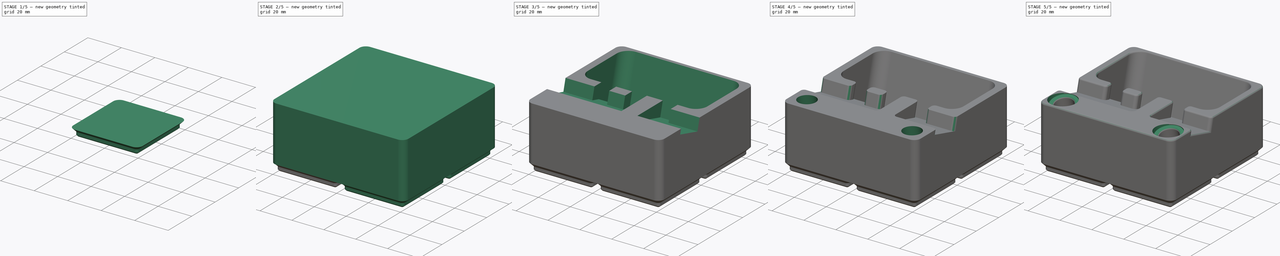
[diagram: build sequence overview — one tinted view per stage of 5, left to right]
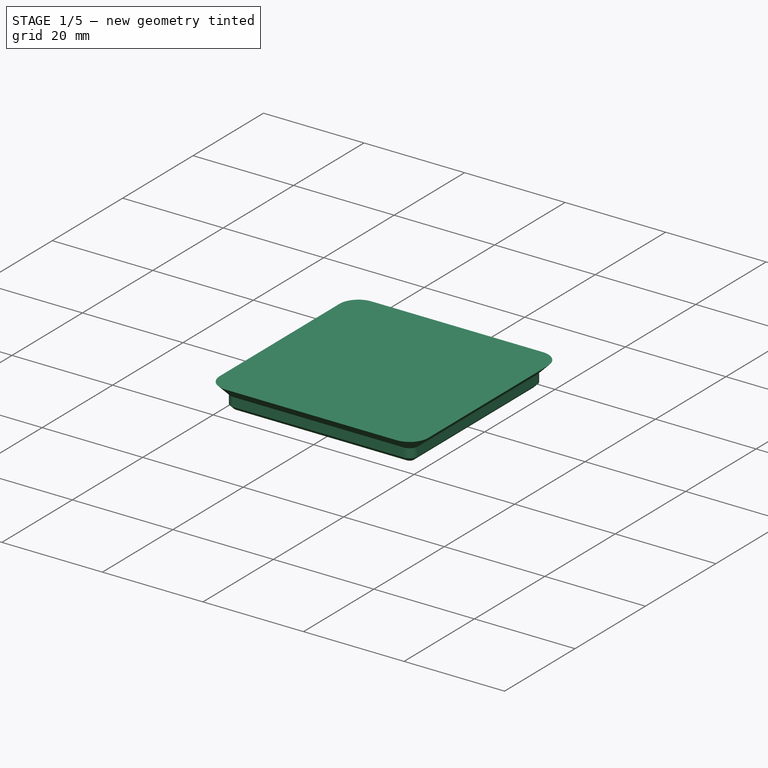
[diagram: stage 1 of 5 — iso view after this stage's code; geometry added in this stage tinted green]
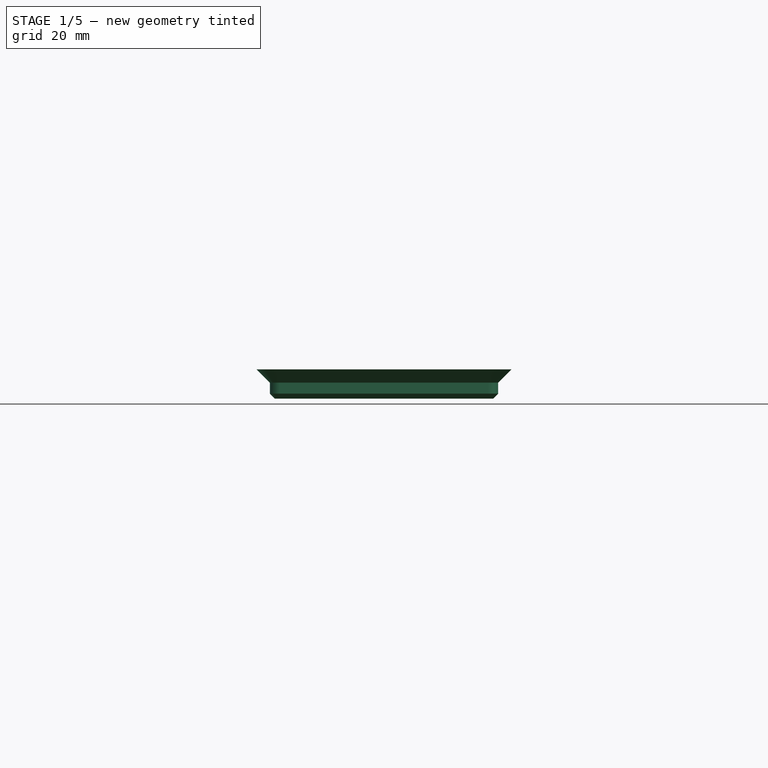
[diagram: stage 1 of 5 — front view after this stage's code; geometry added in this stage tinted green]
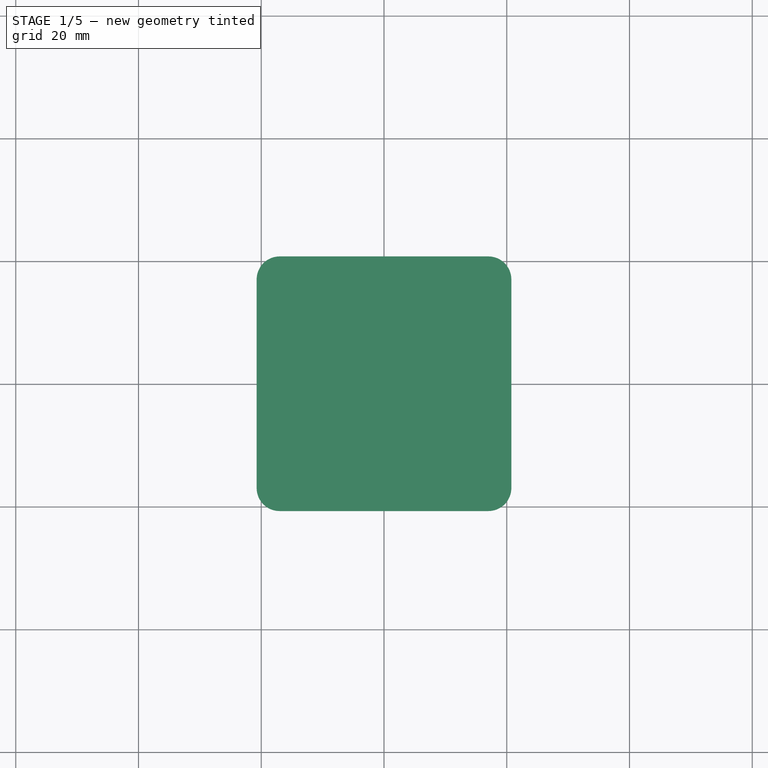
[diagram: stage 1 of 5 — top view after this stage's code; geometry added in this stage tinted green]
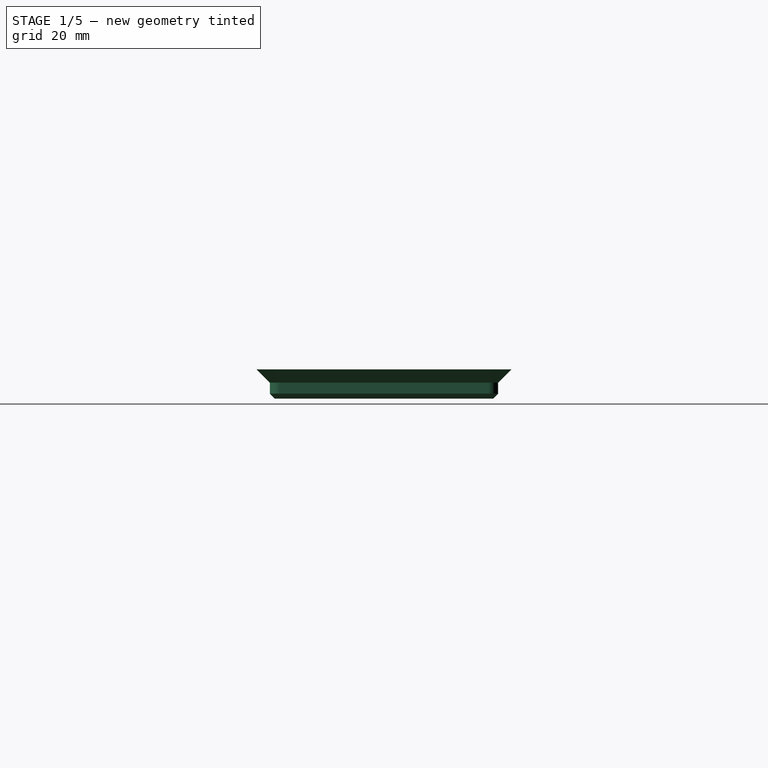
[diagram: stage 1 of 5 — right view after this stage's code; geometry added in this stage tinted green]
FCSTD DOCUMENT  (FreeCAD 1.1R20260223 (Git shallow))
Label: Gridfinity Fluke 115
License: Creative Commons Attribution 4.0
LicenseURL: https://creativecommons.org/licenses/by/4.0/
objects: Sketcher::SketchObject×7, PartDesign::Fillet×5, PartDesign::Pad×4, PartDesign::Pocket×4, App::Point×3, Part::Part2DObjectPython×3, Part::LocalCoordinateSystem×2, PartDesign::FeaturePython×1, PartDesign::Hole×1, PartDesign::Chamfer×1, PartDesign::Body×1
note: 65 computed .brp shape members not serialized (recipe doc carries the construction recipe); baked Part::Feature solids carry a one-line shape summary decoded from their .brp

FEATURE [App::Point] Origin002  label="Origin"
  Role = Origin
FEATURE [Sketcher::SketchObject] Sketch006
  ArcFitTolerance = 1e-06
  AttachmentSupport = -> [Origin]
  ExternalTypes = [0]
  FullyConstrained = true
  MakeInternals = false
  MapMode = 5
  expr: Constraints[10] = href(<<Tray>>.Width) * 42 - 16
  expr: Constraints[11] = href(<<Tray>>.Depth) * 42 - 16
  sketch-geometry (4):
    g0: Circle CenterX=-13 CenterY=-13 CenterZ=0 NormalX=0 NormalY=0 NormalZ=1 AngleXU=0 Radius=3.25
    g1: Circle CenterX=-13 CenterY=55 CenterZ=0 NormalX=0 NormalY=0 NormalZ=1 AngleXU=0 Radius=3.25
    g2: Circle CenterX=55 CenterY=55 CenterZ=0 NormalX=0 NormalY=0 NormalZ=1 AngleXU=0 Radius=3.25
    g3: Circle CenterX=55 CenterY=-13 CenterZ=0 NormalX=0 NormalY=0 NormalZ=1 AngleXU=0 Radius=3.25
  constraints (12):
    c: Equal(g2,g1)
    c: Equal(g1,g0)
    c: Equal(g0,g3)
    c: Diameter(g0) = 6.5
    c: Horizontal(g1,g2)
    c: Horizontal(g0,g3)
    c: Vertical(g1,g0)
    c: Vertical(g2,g3)
    c: DistanceY(g0,g-1) = 13
    c: DistanceX(g0,g-1) = 13
    c: DistanceX(g0,g3) = 68
    c: DistanceY(g0,g1) = 68
FEATURE [Sketcher::SketchObject] Sketch
  ArcFitTolerance = 1e-06
  AttachmentSupport = -> [XY_Plane]
  ExternalTypes = [0]
  FullyConstrained = true
  MakeInternals = false
  MapMode = 5
  sketch-geometry (10):
    g0: LineSegment StartX=-17.8 StartY=17 StartZ=0 EndX=-17.8 EndY=-17 EndZ=0
    g1: LineSegment StartX=-17 StartY=-17.8 StartZ=0 EndX=17 EndY=-17.8 EndZ=0
    g2: LineSegment StartX=17.8 StartY=-17 StartZ=0 EndX=17.8 EndY=17 EndZ=0
    g3: LineSegment StartX=17 StartY=17.8 StartZ=0 EndX=-17 EndY=17.8 EndZ=0
    g4: ArcOfCircle CenterX=-17 CenterY=17 CenterZ=0 NormalX=0 NormalY=0 NormalZ=1 AngleXU=0 Radius=0.8 StartAngle=1.5708 EndAngle=3.14159
    g5: ArcOfCircle CenterX=-17 CenterY=-17 CenterZ=0 NormalX=0 NormalY=0 NormalZ=1 AngleXU=0 Radius=0.8 StartAngle=3.14159 EndAngle=4.71239
    g6: ArcOfCircle CenterX=17 CenterY=-17 CenterZ=0 NormalX=0 NormalY=0 NormalZ=1 AngleXU=0 Radius=0.8 StartAngle=4.71239 EndAngle=6.28319
    g7: ArcOfCircle CenterX=17 CenterY=17 CenterZ=0 NormalX=0 NormalY=0 NormalZ=1 AngleXU=0 Radius=0.8 StartAngle=9.76e-14 EndAngle=1.5708
    g8: GeomPoint [constr] X=-17.8 Y=17.8 Z=0
    g9: GeomPoint [constr] X=17.8 Y=-17.8 Z=0
  constraints (23):
    c: Tangent(g0,g4) = -1.5708
    c: Tangent(g0,g5) = -1.5708
    c: Tangent(g1,g5) = -1.5708
    c: Tangent(g1,g6) = -1.5708
    c: Tangent(g2,g6) = -1.5708
    c: Tangent(g2,g7) = -1.5708
    c: Tangent(g3,g7) = -1.5708
    c: Tangent(g3,g4) = -1.5708
    c: Vertical(g0)
    c: Vertical(g2)
    c: Horizontal(g1)
    c: Horizontal(g3)
    c: Equal(g4,g5)
    c: Equal(g5,g6)
    c: Equal(g6,g7)
    c: PointOnObject(g8,g0)
    c: PointOnObject(g8,g3)
    c: PointOnObject(g9,g1)
    c: PointOnObject(g9,g2)
    c: Symmetric(g8,g9,g-1)
    c: Equal(g3,g2)
    c: DistanceY(g9,g8) = 35.6
    c: Diameter(g5) = 1.6
FEATURE [PartDesign::Pad] Pad  label="Lowest base pad"
  Direction = (0,0,1)
  Length = 0.8
  Length2 = 10
  Profile = -> Sketch
  ReferenceAxis = -> Sketch [N_Axis]
  SideType = 0
  Suppressed = false
  TaperAngle = 45
  Type = 0
  Type2 = 0
FEATURE [PartDesign::Pad] Pad001  label="Second base pad"
  BaseFeature = -> Pad
  Direction = (0,0,1)
  Length = 1.8
  Length2 = 10
  Profile = -> Pad [Edge3,Edge24,Edge22,Edge19,Edge16,Edge13,Edge10,Edge7]
  SideType = 0
  Suppressed = false
  Type = 0
  Type2 = 0
FEATURE [PartDesign::Pad] Pad002  label="Third base pad"
  BaseFeature = -> Pad001
  Direction = (0,0,1)
  Length = 2.15
  Length2 = 10
  Profile = -> Pad001 [Edge16,Edge31,Edge32,Edge33,Edge34,Edge35,Edge36,Edge29]
  SideType = 0
  Suppressed = false
  TaperAngle = 45
  Type = 0
  Type2 = 0
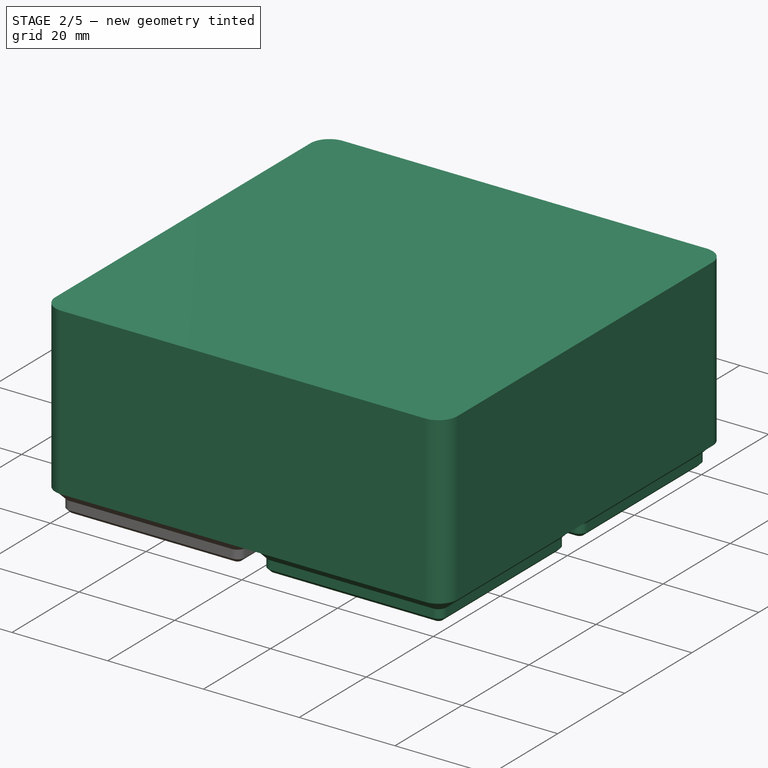
[diagram: stage 2 of 5 — iso view after this stage's code; geometry added in this stage tinted green]
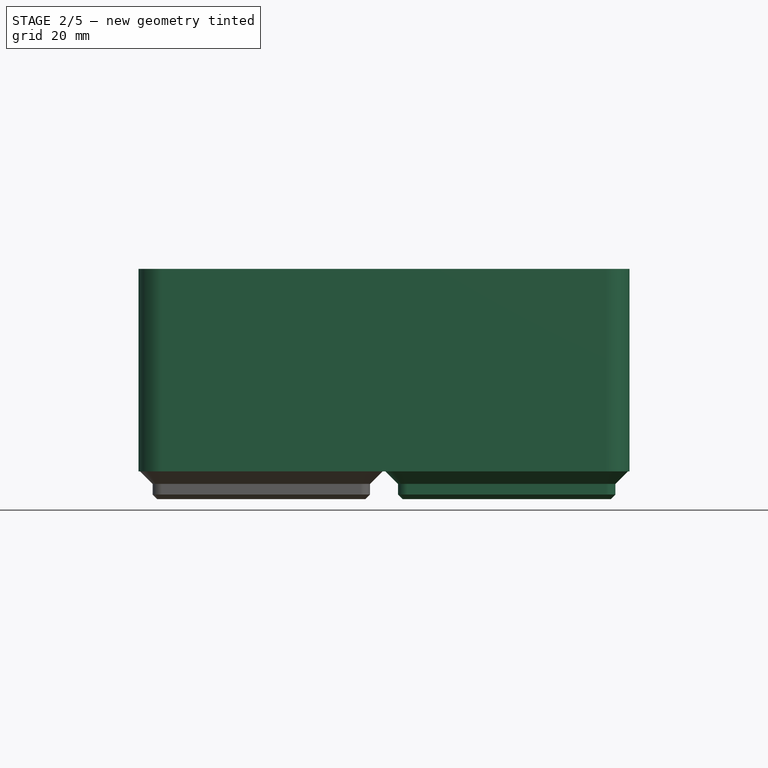
[diagram: stage 2 of 5 — front view after this stage's code; geometry added in this stage tinted green]
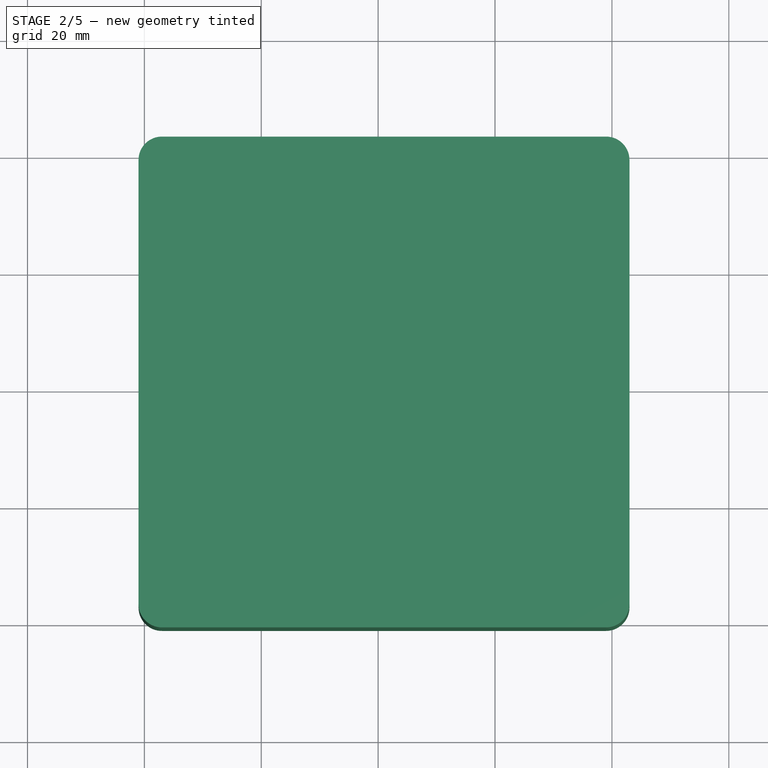
[diagram: stage 2 of 5 — top view after this stage's code; geometry added in this stage tinted green]
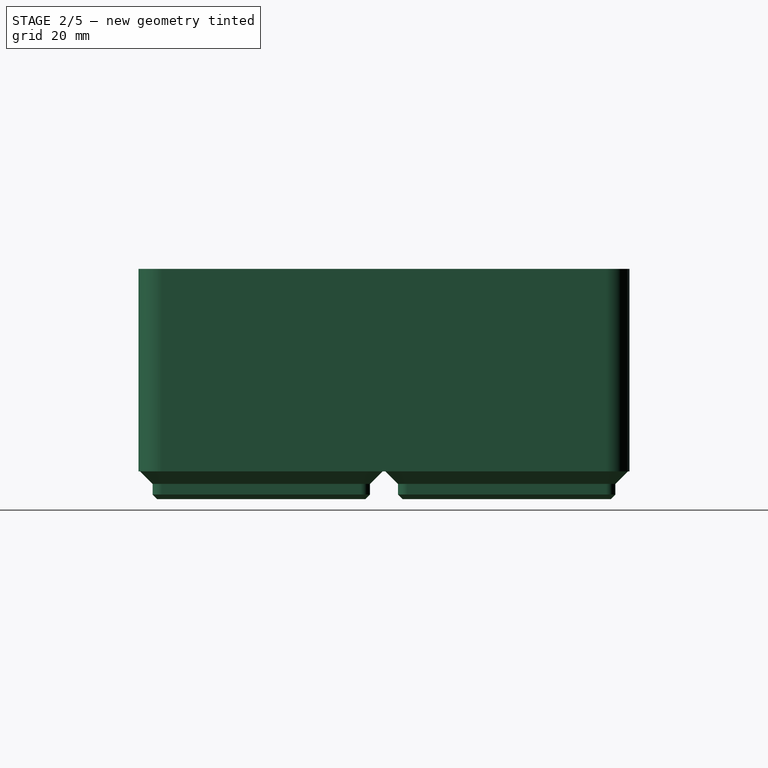
[diagram: stage 2 of 5 — right view after this stage's code; geometry added in this stage tinted green]
FEATURE [Sketcher::SketchObject] Sketch001
  ArcFitTolerance = 1e-06
  AttachmentSupport = -> [Pad002]
  ExternalTypes = [0]
  FullyConstrained = true
  MakeInternals = false
  MapMode = 5
  Placement = pos=(0,0,4.75) rot=(0,0,1;0rad)
  expr: Constraints[23] = href(<<Tray>>.Width) * 42
  expr: Constraints[24] = href(<<Tray>>.Depth) * 42
  sketch-geometry (8):
    g0: ArcOfCircle CenterX=-17 CenterY=-17 CenterZ=0 NormalX=0 NormalY=0 NormalZ=1 AngleXU=0 Radius=4 StartAngle=3.14159 EndAngle=4.71239
    g1: LineSegment StartX=-21 StartY=-17 StartZ=0 EndX=-21 EndY=59 EndZ=0
    g2: LineSegment StartX=-17 StartY=-21 StartZ=0 EndX=59 EndY=-21 EndZ=0
    g3: ArcOfCircle CenterX=-17 CenterY=59 CenterZ=0 NormalX=0 NormalY=0 NormalZ=1 AngleXU=0 Radius=4 StartAngle=1.5708 EndAngle=3.14159
    g4: ArcOfCircle CenterX=59 CenterY=-17 CenterZ=0 NormalX=0 NormalY=0 NormalZ=1 AngleXU=0 Radius=4 StartAngle=4.71239 EndAngle=6.28319
    g5: LineSegment StartX=-17 StartY=63 StartZ=0 EndX=59 EndY=63 EndZ=0
    g6: ArcOfCircle CenterX=59 CenterY=59 CenterZ=0 NormalX=0 NormalY=0 NormalZ=1 AngleXU=0 Radius=4 StartAngle=0 EndAngle=1.5708
    g7: LineSegment StartX=63 StartY=59 StartZ=0 EndX=63 EndY=-17 EndZ=0
  constraints (28):
    c: Vertical(g0,g0)
    c: Horizontal(g0,g0)
    c: Coincident(g1,g0)
    c: Vertical(g1)
    c: Coincident(g2,g0)
    c: Horizontal(g2)
    c: Coincident(g3,g1)
    c: Coincident(g4,g2)
    c: Vertical(g4,g2)
    c: Horizontal(g4,g4)
    c: Horizontal(g1,g3)
    c: Vertical(g3,g3)
    c: Equal(g0,g3)
    c: Equal(g0,g4)
    c: Coincident(g5,g3)
    c: Horizontal(g5)
    c: Vertical(g5,g2)
    c: Coincident(g6,g5)
    c: Vertical(g5,g6)
    c: Horizontal(g6,g6)
    c: Coincident(g7,g6)
    c: Coincident(g7,g4)
    c: Equal(g0,g6)
    c: DistanceX(g0,g4) = 84
    c: DistanceY(g2,g5) = 84
    c: DistanceX(g0,g-1) = 21
    c: DistanceY(g0,g-1) = 21
    c: Radius(g0) = 4
FEATURE [Part::Part2DObjectPython] LinearArray  label="LinearArrayX"  # Draft 2D object (typed FeaturePython)
  Alignment = 0
  AttacherType = Attacher::AttachEngine3D
  CellStart = A1
  Count = 2
  Dir = (1,0,0)
  DirIsDriven = true
  DistributionLaw = 0
  DrivenProperty = 1
  EndInclusive = true
  ExposePlacement = false
  GeneratorMode = 1
  Link = -> Pad002
  LinkSubelement = Edge6
  MarkerShape = 1
  MarkerSize = 5
  NumElements = 2
  OrientMode = 1
  Point = (-17,-17.8,0)
  PointIsDriven = true
  Reverse = false
  SpanEnd = 34
  SpanStart = 0
  Step = 42
  SubLink = -> Pad002 [Edge6]
  Type = lattice2LinearArray.LinearArray
  VSGVersion = 1
  Values = 0.0 | 42.0
  ValuesSource = 2
  isLattice = 1
  expr: Count = href(<<Tray>>.Width)
FEATURE [Part::Part2DObjectPython] LinearArray001  label="LinearArrayY"  # Draft 2D object (typed FeaturePython)
  Alignment = 0
  AttacherType = Attacher::AttachEngine3D
  CellStart = A1
  Count = 2
  Dir = (0,1,0)
  DirIsDriven = true
  DistributionLaw = 0
  DrivenProperty = 1
  EndInclusive = true
  ExposePlacement = false
  GeneratorMode = 1
  Link = -> Pad002
  LinkSubelement = Edge1
  MarkerShape = 1
  MarkerSize = 5
  NumElements = 2
  OrientMode = 1
  Point = (-17.8,-17,0)
  PointIsDriven = true
  Reverse = true
  SpanEnd = 34
  SpanStart = 0
  Step = 42
  SubLink = -> Pad002 [Edge1]
  Type = lattice2LinearArray.LinearArray
  VSGVersion = 1
  Values = 0.0 | 42.0
  ValuesSource = 2
  isLattice = 1
  expr: Count = href(<<Tray>>.Depth)
FEATURE [Part::Part2DObjectPython] Populate  label="Gridfinity array"  # Draft 2D object (typed FeaturePython)
  AttacherType = Attacher::AttachEngine3D
  Copying = 0
  ExposePlacement = false
  MarkerShape = 1
  MarkerSize = 5
  NumElements = 4
  Object = -> LinearArray
  OutputCompounding = 0
  PlacementsTo = -> LinearArray001
  Referencing = 1
  Type = lattice2PopulateCopies.LatticePopulateCopies
  isLattice = 1
FEATURE [PartDesign::FeaturePython] LatticePattern  label="Foundation grid pattern"  # WARN: FeaturePython — macro-defined, semantics opaque (R4)
  AllowBaseFeature = true
  BaseFeature = -> Pad002
  Debug = false
  FeaturesToCopy = -> [Pad002,Pad,Pad001]
  IgnoreUnsupported = false
  PlacementsTo = -> Populate
  Referencing = 1
  Selfintersections = false
  SignOverride = 0
  SkipFirstInBody = false
  Suppressed = false
FEATURE [PartDesign::Pad] Pad003  label="Tray top"
  BaseFeature = -> LatticePattern
  Direction = (0,0,1)
  Length = 34.65
  Length2 = 10
  Profile = -> Sketch001
  ReferenceAxis = -> Sketch001 [N_Axis]
  Refine = true
  SideType = 0
  Suppressed = false
  Type = 0
  Type2 = 0
  expr: Length = href(<<Tray>>.Height) * 7 - 0.35
FEATURE [PartDesign::Hole] Hole  label="Magnet holes"
  BaseFeature = -> Pad003
  BaseProfileType = 7
  CustomThreadClearance = 0
  Depth = 2
  DepthType = 0
  Diameter = 6.5
  DrillForDepth = false
  DrillPoint = 1
  DrillPointAngle = 90
  HoleCutCountersinkAngle = 90
  HoleCutCustomValues = false
  HoleCutDepth = 0
  HoleCutDiameter = 0
  HoleCutType = 0
  ModelThread = false
  Profile = -> Sketch006
  Refine = true
  Reversed = true
  Suppressed = false
  Tapered = false
  TaperedAngle = 90
  ThreadClass = 0
  ThreadDepth = 2
  ThreadDepthType = 0
  ThreadDiameter = 6.5
  ThreadDirection = 0
  ThreadFit = 0
  ThreadSize = 0
  ThreadType = 0
  Threaded = false
  UseCustomThreadClearance = false
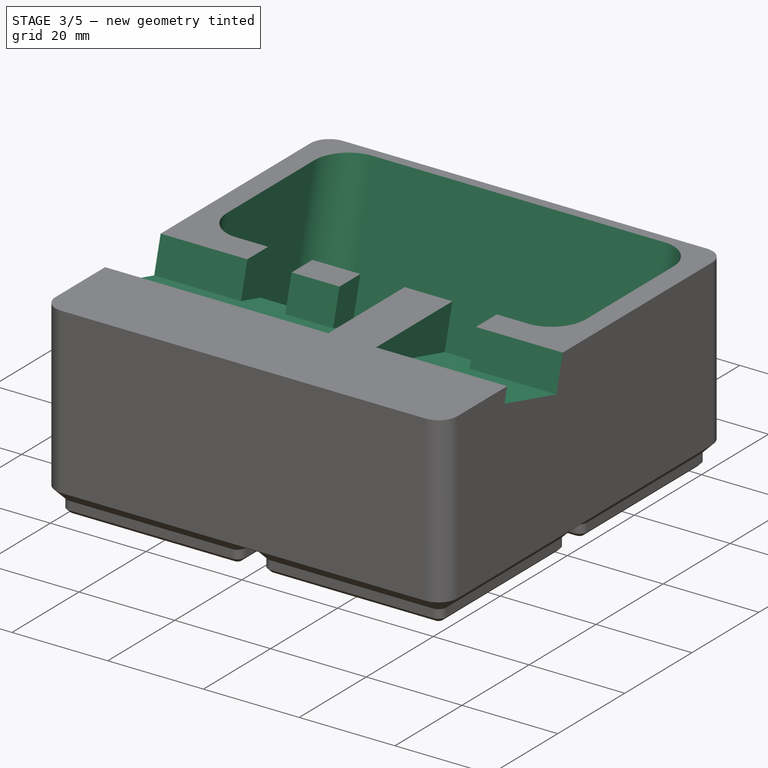
[diagram: stage 3 of 5 — iso view after this stage's code; geometry added in this stage tinted green]
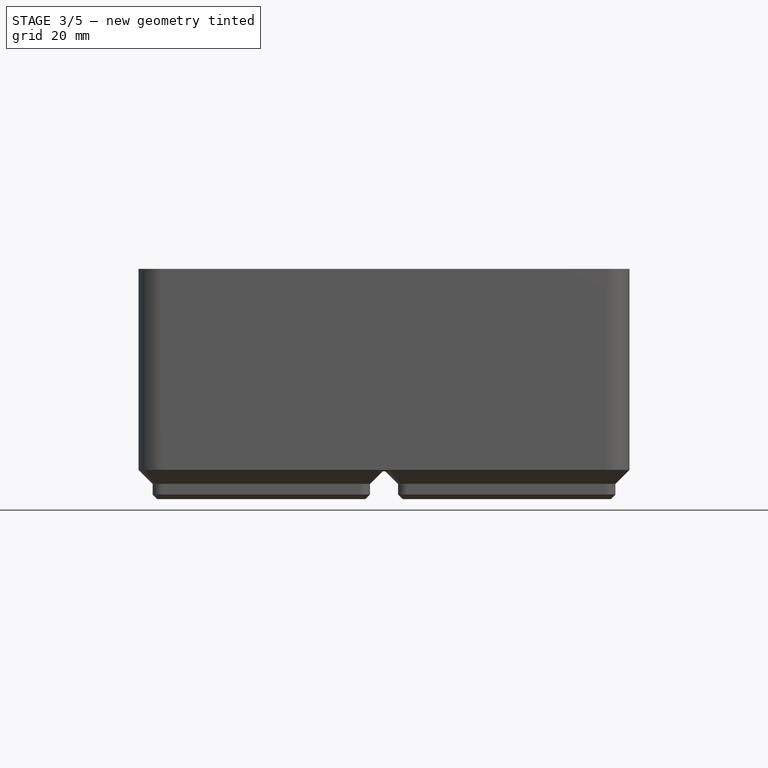
[diagram: stage 3 of 5 — front view after this stage's code; geometry added in this stage tinted green]
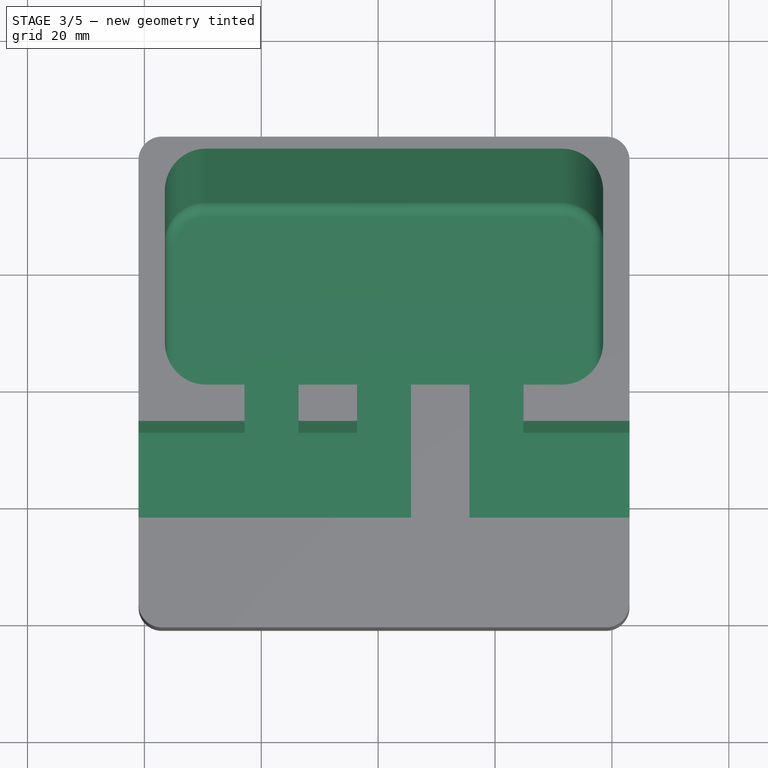
[diagram: stage 3 of 5 — top view after this stage's code; geometry added in this stage tinted green]
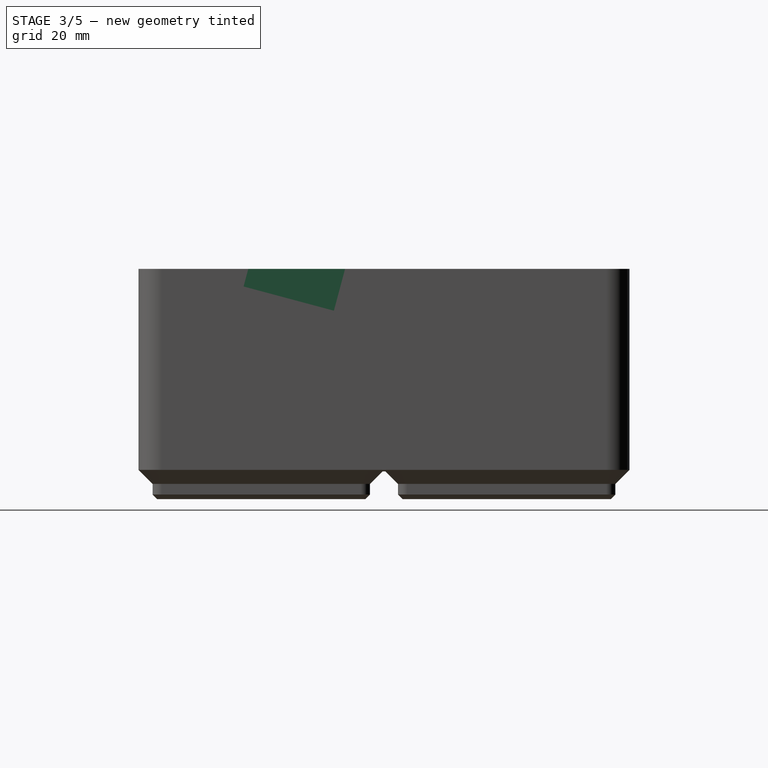
[diagram: stage 3 of 5 — right view after this stage's code; geometry added in this stage tinted green]
FEATURE [PartDesign::Chamfer] Chamfer001  label="Base chamfer"
  Angle = 45
  Base = -> Hole [Edge14]
  BaseFeature = -> Hole
  ChamferType = 0
  FlipDirection = false
  Refine = true
  Size = 0.249
  Size2 = 1
  SupportTransform = false
  Suppressed = false
  UseAllEdges = false
FEATURE [App::Point] Origin003  label="Origin002"
  Role = Origin
FEATURE [Part::LocalCoordinateSystem] LCS  label="LCS inclined from the back"
  AttacherType = Attacher::AttachEngine3D
  AttachmentOffset = pos=(0,0,0) rot=(0,0,1;0.261799rad)
  AttachmentSupport = -> [Chamfer001]
  MapMode = 7
  OriginFeatures = -> [X_Axis001,Y_Axis001,Z_Axis001,XY_Plane001,XZ_Plane001,YZ_Plane001,Origin003]
  Placement = pos=(-17,63,39.4) rot=(0.519988,-0.677661,-0.519988;1.95044rad)
FEATURE [Sketcher::SketchObject] Sketch007
  ArcFitTolerance = 1e-06
  AttachmentSupport = -> [LCS]
  ExternalGeometry = -> [Chamfer001]
  ExternalTypes = [0]
  FullyConstrained = true
  MakeInternals = false
  MapMode = 5
  Placement = pos=(-17,63,39.4) rot=(0.704063,-0.704063,0.092692;2.95674rad)
  sketch-geometry (12):
    g0: LineSegment StartX=2 StartY=-7.5 StartZ=0 EndX=2 EndY=-68.5 EndZ=0
    g1: LineSegment StartX=9 StartY=-75.5 StartZ=0 EndX=34 EndY=-75.5 EndZ=0
    g2: LineSegment StartX=41 StartY=-68.5 StartZ=0 EndX=41 EndY=-7.5 EndZ=0
    g3: LineSegment StartX=34 StartY=-0.5 StartZ=0 EndX=9 EndY=-0.5 EndZ=0
    g4: ArcOfCircle CenterX=9 CenterY=-7.5 CenterZ=0 NormalX=0 NormalY=0 NormalZ=1 AngleXU=0 Radius=7 StartAngle=1.5708 EndAngle=3.14159
    g5: ArcOfCircle CenterX=9 CenterY=-68.5 CenterZ=0 NormalX=0 NormalY=0 NormalZ=1 AngleXU=0 Radius=7 StartAngle=3.14159 EndAngle=4.71239
    g6: ArcOfCircle CenterX=34 CenterY=-68.5 CenterZ=0 NormalX=0 NormalY=0 NormalZ=1 AngleXU=0 Radius=7 StartAngle=4.71239 EndAngle=6.28319
    g7: ArcOfCircle CenterX=34 CenterY=-7.5 CenterZ=0 NormalX=0 NormalY=0 NormalZ=1 AngleXU=0 Radius=7 StartAngle=1e-16 EndAngle=1.5708
    g8: GeomPoint [constr] X=2 Y=-0.5 Z=0
    g9: GeomPoint [constr] X=41 Y=-75.5 Z=0
    g10: GeomPoint [constr] X=3.6e-15 Y=-38 Z=0
    g11: GeomPoint [constr] X=21.5 Y=-38 Z=0
  constraints (26):
    c: Tangent(g0,g4) = -1.5708
    c: Tangent(g0,g5) = -1.5708
    c: Tangent(g1,g5) = -1.5708
    c: Tangent(g1,g6) = -1.5708
    c: Tangent(g2,g6) = -1.5708
    c: Tangent(g2,g7) = -1.5708
    c: Tangent(g3,g7) = -1.5708
    c: Tangent(g3,g4) = -1.5708
    c: Vertical(g0)
    c: Vertical(g2)
    c: Horizontal(g1)
    c: Horizontal(g3)
    c: Equal(g4,g5)
    c: Equal(g5,g6)
    c: Equal(g6,g7)
    c: PointOnObject(g8,g0)
    c: PointOnObject(g8,g3)
    c: PointOnObject(g9,g1)
    c: PointOnObject(g9,g2)
    c: Radius(g5) = 7
    c: DistanceY(g1,g3) = 75
    c: DistanceX(g0,g2) = 39
    c: Symmetric(g-3,g-3,g10)
    c: Symmetric(g8,g9,g11)
    c: Horizontal(g11,g10)
    c: DistanceX(g-3,g0) = 2
FEATURE [PartDesign::Pocket] Pocket  label="Multimeter pocket"
  BaseFeature = -> Chamfer001
  Direction = (0,0.258819,0.965926)
  Length = 36
  Length2 = 5
  Profile = -> Sketch007
  ReferenceAxis = -> Sketch007 [N_Axis]
  Reversed = true
  SideType = 0
  Suppressed = false
  Type = 0
  Type2 = 0
FEATURE [PartDesign::Fillet] Fillet  label="Multimeter pocket bottom fillet"
  Base = -> Pocket [Edge274]
  BaseFeature = -> Pocket
  Radius = 2
  SupportTransform = false
  Suppressed = false
  UseAllEdges = false
FEATURE [Sketcher::SketchObject] Sketch008
  ArcFitTolerance = 1e-06
  AttachmentSupport = -> [LCS]
  ExternalGeometry = -> [Fillet]
  ExternalTypes = [0,0,0]
  FullyConstrained = true
  MakeInternals = false
  MapMode = 5
  Placement = pos=(-17,63,39.4) rot=(0.704063,-0.704063,0.092692;2.95674rad)
  sketch-geometry (18):
    g0: LineSegment StartX=41 StartY=-33.375 StartZ=0 EndX=47 EndY=-33.375 EndZ=0
    g1: LineSegment StartX=47 StartY=-33.375 StartZ=0 EndX=47 EndY=-23.375 EndZ=0
    g2: LineSegment StartX=47 StartY=4 StartZ=0 EndX=63 EndY=4 EndZ=0
    g3: LineSegment StartX=63 StartY=4 StartZ=0 EndX=63 EndY=-42.625 EndZ=0
    g4: LineSegment StartX=63 StartY=-42.625 StartZ=0 EndX=41 EndY=-42.625 EndZ=0
    g5: LineSegment StartX=41 StartY=-42.625 StartZ=0 EndX=41 EndY=-33.375 EndZ=0
    g6: LineSegment StartX=41 StartY=-52.625 StartZ=0 EndX=63 EndY=-52.625 EndZ=0
    g7: LineSegment StartX=63 StartY=-52.625 StartZ=0 EndX=63 EndY=-80 EndZ=0
    g8: LineSegment StartX=63 StartY=-80 StartZ=0 EndX=47 EndY=-80 EndZ=0
    g9: LineSegment StartX=47 StartY=-80 StartZ=0 EndX=47 EndY=-61.875 EndZ=0
    g10: LineSegment StartX=47 StartY=-61.875 StartZ=0 EndX=41 EndY=-61.875 EndZ=0
    g11: LineSegment StartX=41 StartY=-61.875 StartZ=0 EndX=41 EndY=-52.625 EndZ=0
    g12: GeomPoint [constr] X=41 Y=-38 Z=0
    g13: LineSegment StartX=47 StartY=-14.125 StartZ=0 EndX=47 EndY=4 EndZ=0
    g14: LineSegment StartX=41 StartY=-14.125 StartZ=0 EndX=47 EndY=-14.125 EndZ=0
    g15: LineSegment StartX=41 StartY=-23.375 StartZ=0 EndX=41 EndY=-14.125 EndZ=0
    g16: LineSegment StartX=47 StartY=-23.375 StartZ=0 EndX=41 EndY=-23.375 EndZ=0
    g17: LineSegment [constr] StartX=41 StartY=-42.625 StartZ=0 EndX=41 EndY=-52.625 EndZ=0
  constraints (50):
    c: PointOnObject(g0,g-3)
    c: Horizontal(g0)
    c: Coincident(g0,g1)
    c: Coincident(g13,g2)
    c: Horizontal(g2)
    c: Coincident(g2,g3)
    c: Vertical(g3)
    c: Coincident(g3,g4)
    c: Horizontal(g4)
    c: Coincident(g4,g5)
    c: Coincident(g5,g0)
    c: PointOnObject(g6,g-3)
    c: Horizontal(g6)
    c: Coincident(g6,g7)
    c: Vertical(g7)
    c: Coincident(g7,g8)
    c: Horizontal(g8)
    c: Coincident(g8,g9)
    c: Vertical(g9)
    c: Coincident(g9,g10)
    c: PointOnObject(g10,g-3)
    c: Horizontal(g10)
    c: Coincident(g10,g11)
    c: Coincident(g11,g6)
    c: Equal(g5,g11)
    c: Vertical(g3,g6)
    c: PointOnObject(g2,g-4)
    c: PointOnObject(g7,g-5)
    c: DistanceY(g6,g4) = 10
    c: DistanceX(g10,g10) = 6
    c: DistanceX(g2,g2) = 16
    c: Vertical(g0,g9)
    c: DistanceY(g5,g5) = 9.25
    c: Symmetric(g-3,g-3,g12)
    c: Symmetric(g4,g0,g12)
    c: Vertical(g13)
    c: Coincident(g14,g13)
    c: Coincident(g15,g14)
    c: Coincident(g16,g15)
    c: Vertical(g1)
    c: Coincident(g1,g16)
    c: Vertical(g15)
    c: Vertical(g13,g1)
    c: Horizontal(g14)
    c: Horizontal(g16)
    c: PointOnObject(g14,g-3)
    c: Equal(g5,g15)
    c: Coincident(g17,g4)
    c: Coincident(g17,g6)
    c: Equal(g17,g1)
FEATURE [PartDesign::Pocket] Pocket001  label="Probe plug pocket"
  BaseFeature = -> Fillet
  Direction = (0,0.258819,0.965926)
  Length = 20
  Length2 = 5
  Profile = -> Sketch008
  ReferenceAxis = -> Sketch008 [N_Axis]
  Reversed = true
  SideType = 0
  Suppressed = false
  Type = 0
  Type2 = 0
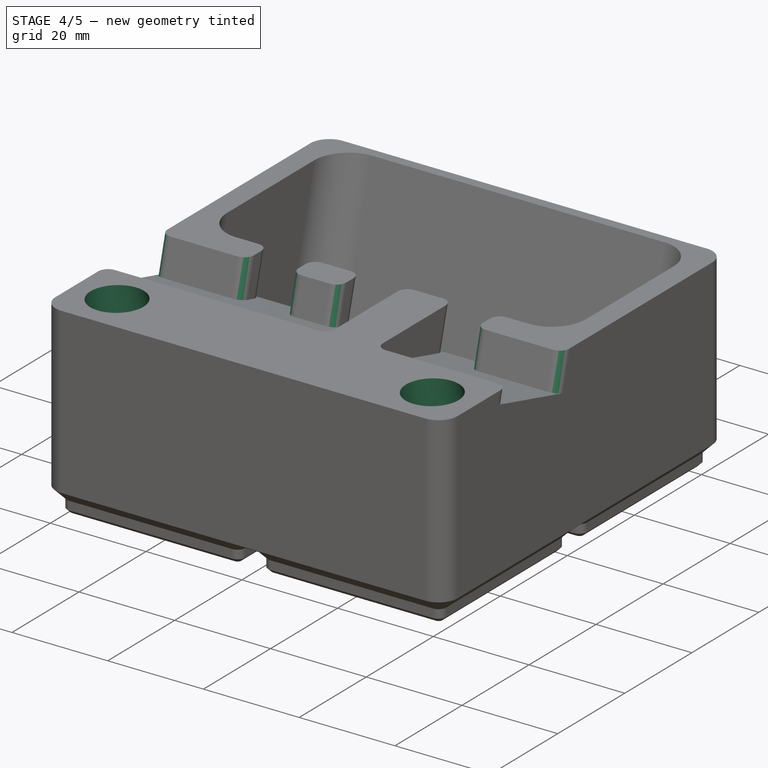
[diagram: stage 4 of 5 — iso view after this stage's code; geometry added in this stage tinted green]
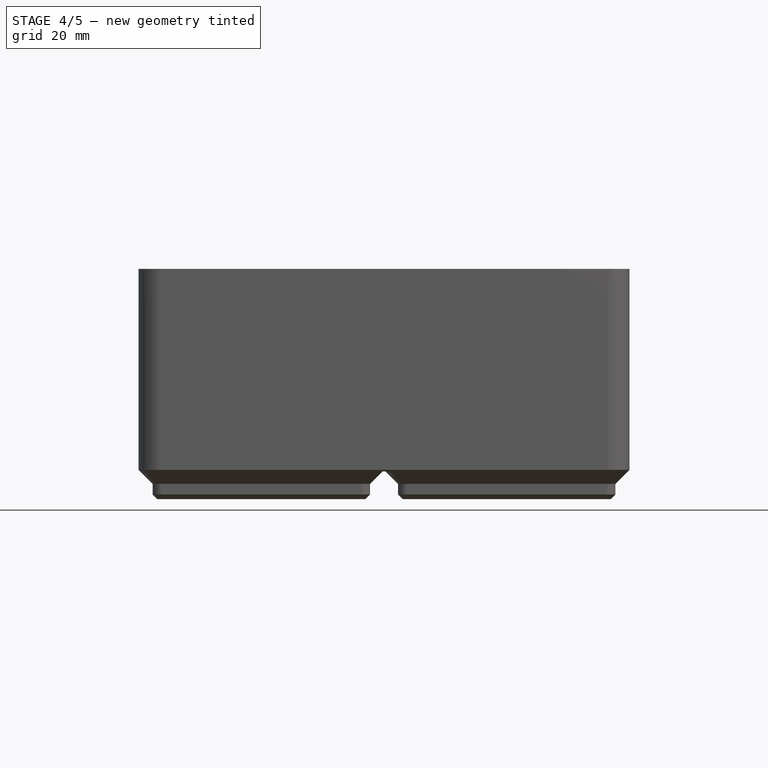
[diagram: stage 4 of 5 — front view after this stage's code; geometry added in this stage tinted green]
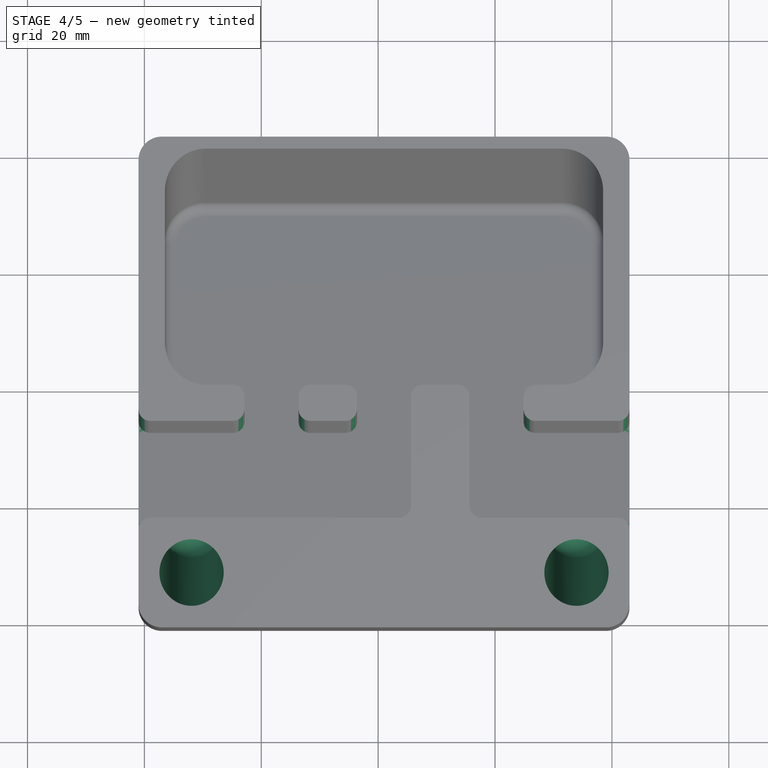
[diagram: stage 4 of 5 — top view after this stage's code; geometry added in this stage tinted green]
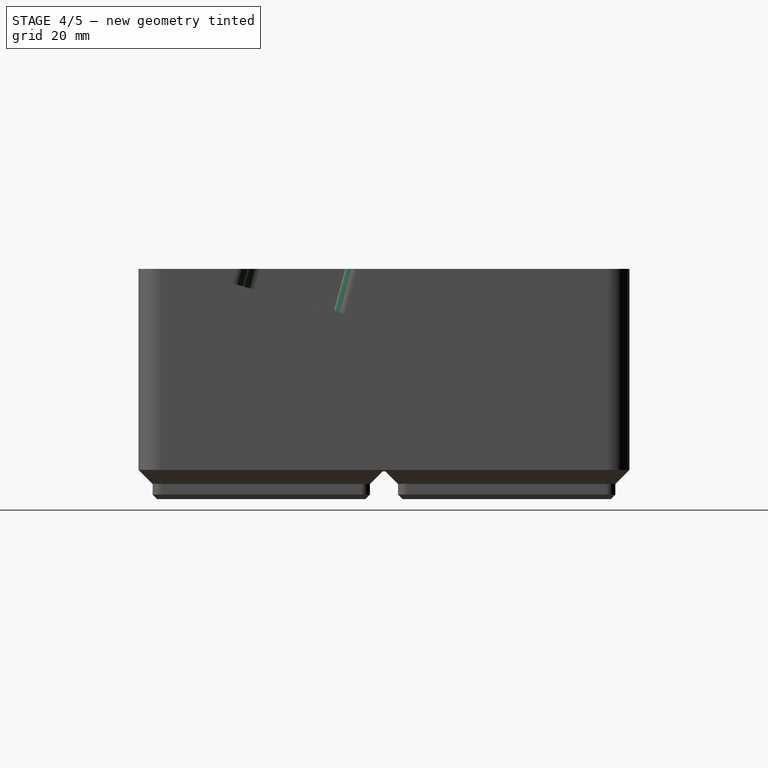
[diagram: stage 4 of 5 — right view after this stage's code; geometry added in this stage tinted green]
FEATURE [App::Point] Origin004  label="Origin003"
  Role = Origin
FEATURE [Part::LocalCoordinateSystem] LCS001  label="LCS inclined from the front"
  AttacherType = Attacher::AttachEngine3D
  AttachmentOffset = pos=(0,0,0) rot=(0,0,-1;0.261799rad)
  AttachmentSupport = -> [Pocket001]
  MapMode = 7
  OriginFeatures = -> [X_Axis002,Y_Axis002,Z_Axis002,XY_Plane002,XZ_Plane002,YZ_Plane002,Origin004]
  Placement = pos=(-17,-21,39.4) rot=(0.621515,-0.476905,-0.621515;2.25159rad)
FEATURE [Sketcher::SketchObject] Sketch009
  ArcFitTolerance = 1e-06
  AttachmentSupport = -> [LCS001]
  ExternalGeometry = -> [Pocket001]
  ExternalTypes = [0,0]
  FullyConstrained = true
  MakeInternals = false
  MapMode = 5
  Placement = pos=(-17,-21,39.4) rot=(0.704063,-0.704063,-0.092692;3.32645rad)
  sketch-geometry (9):
    g0: Circle CenterX=-9.06888 CenterY=-5.06888 CenterZ=0 NormalX=0 NormalY=0 NormalZ=1 AngleXU=0 Radius=5.5
    g1: Circle CenterX=-9.06888 CenterY=-70.9311 CenterZ=0 NormalX=0 NormalY=0 NormalZ=1 AngleXU=0 Radius=5.5
    g2: GeomPoint [constr] X=-7.1e-15 Y=-38 Z=0
    g3: GeomPoint [constr] X=-9.06888 Y=-38 Z=0
    g4: GeomPoint [constr] X=-18.1378 Y=-38 Z=0
    g5: GeomPoint [constr] X=-14.5689 Y=-5.06888 Z=0
    g6: GeomPoint [constr] X=-18.1378 Y=-5.06888 Z=0
    g7: LineSegment [constr] StartX=-9.06888 StartY=-5.06888 StartZ=0 EndX=-18.1378 EndY=-5.06888 EndZ=0
    g8: LineSegment [constr] StartX=-18.1378 StartY=4 StartZ=0 EndX=-18.1378 EndY=-5.06888 EndZ=0
  constraints (17):
    c: Diameter(g0) = 11
    c: Equal(g0,g1)
    c: Symmetric(g-3,g-3,g2)
    c: Symmetric(g1,g0,g3)
    c: Horizontal(g2,g3)
    c: Vertical(g0,g1)
    c: PointOnObject(g4,g-4)
    c: Symmetric(g2,g4,g3)
    c: PointOnObject(g5,g0)
    c: Horizontal(g0,g5)
    c: PointOnObject(g6,g-4)
    c: Horizontal(g0,g6)
    c: Coincident(g7,g0)
    c: Coincident(g7,g6)
    c: Coincident(g8,g-4)
    c: Coincident(g8,g6)
    c: Equal(g7,g8)
FEATURE [PartDesign::Pocket] Pocket002  label="Probe pockets"
  BaseFeature = -> Pocket001
  Direction = (0,-0.258819,0.965926)
  Length = 40
  Length2 = 5
  Profile = -> Sketch009
  ReferenceAxis = -> Sketch009 [N_Axis]
  Reversed = true
  SideType = 0
  Suppressed = false
  Type = 0
  Type2 = 0
FEATURE [PartDesign::Fillet] Fillet001  label="Probe pocket bottom fillet"
  Base = -> Pocket002 [Edge165,Edge163]
  BaseFeature = -> Pocket002
  Radius = 5
  SupportTransform = false
  Suppressed = false
  UseAllEdges = false
FEATURE [PartDesign::Fillet] Fillet002  label="Round off top outline"
  Base = -> Fillet001 [Edge49,Edge51,Edge96,Edge39,Edge41,Edge99,Edge102,Edge22,Edge26,Edge30,Edge54,Edge37,Edge79,Edge45,Edge20,Edge43]
  BaseFeature = -> Fillet001
  Radius = 2
  SupportTransform = false
  Suppressed = false
  UseAllEdges = false
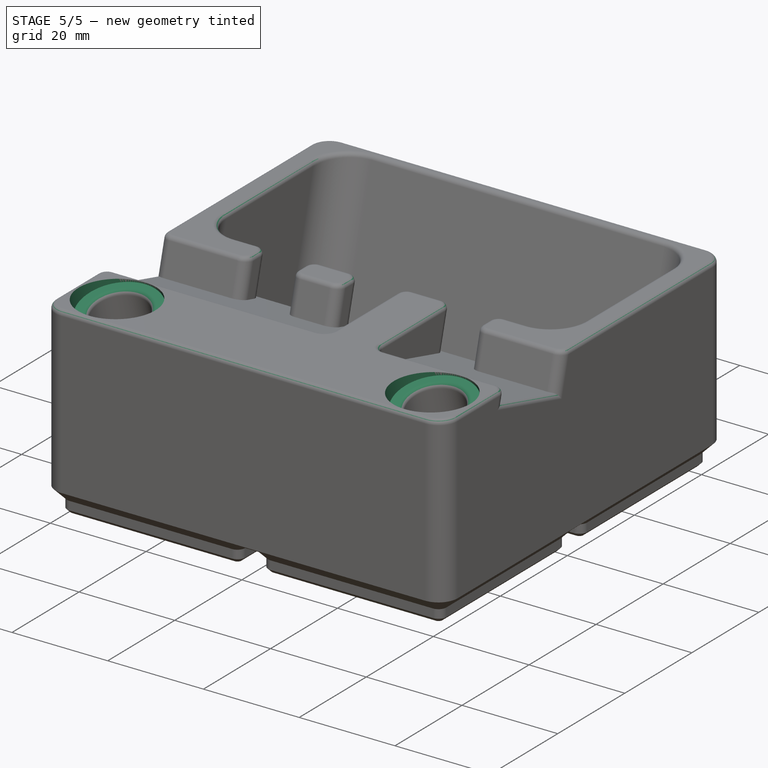
[diagram: stage 5 of 5 — iso view after this stage's code; geometry added in this stage tinted green]
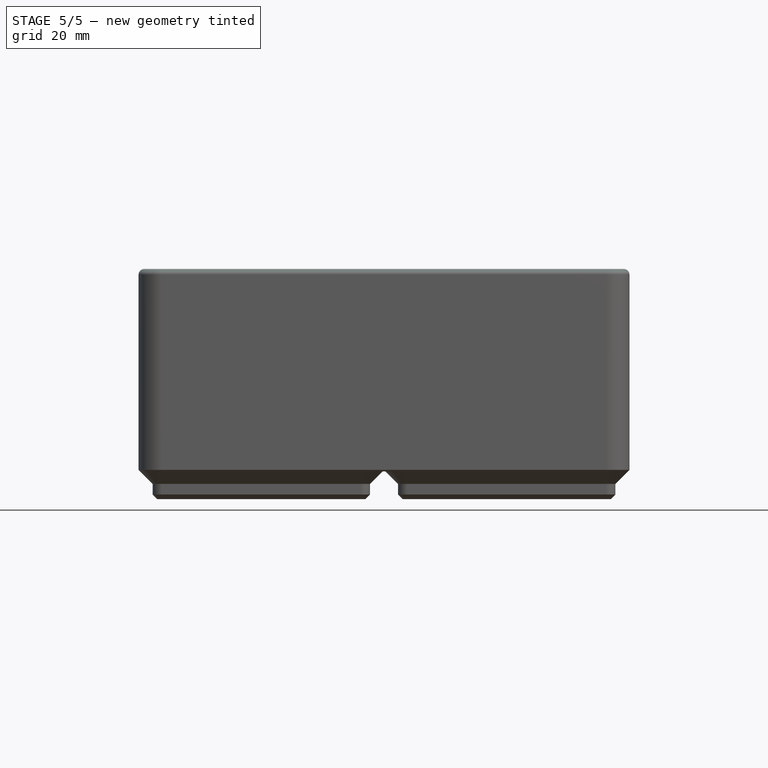
[diagram: stage 5 of 5 — front view after this stage's code; geometry added in this stage tinted green]
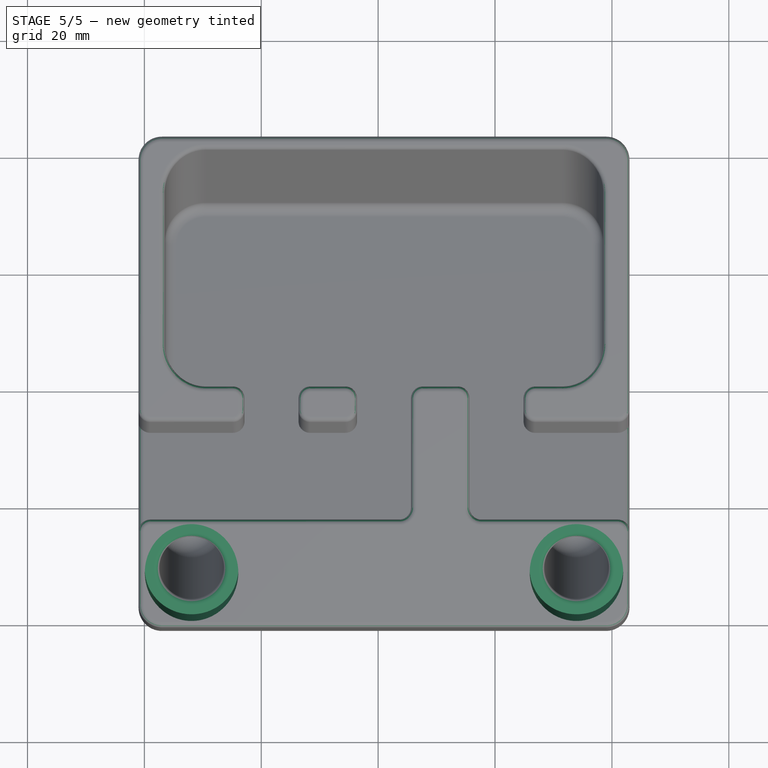
[diagram: stage 5 of 5 — top view after this stage's code; geometry added in this stage tinted green]
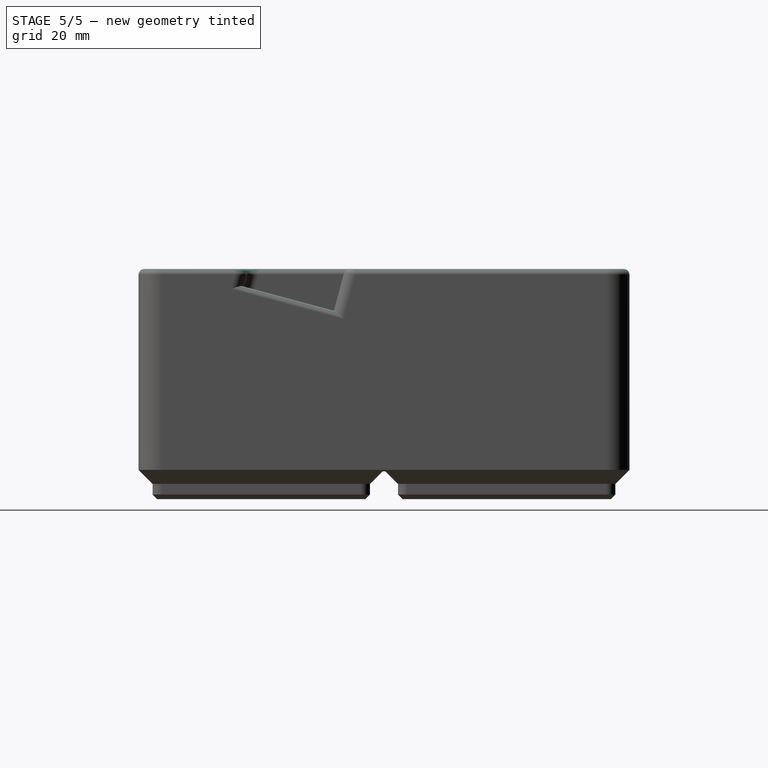
[diagram: stage 5 of 5 — right view after this stage's code; geometry added in this stage tinted green]
FEATURE [PartDesign::Fillet] Fillet003  label="Top fillet"
  Base = -> Fillet002 [Edge48,Edge16,Edge152,Edge45,Edge24]
  BaseFeature = -> Fillet002
  Radius = 1
  SupportTransform = false
  Suppressed = false
  UseAllEdges = false
FEATURE [Sketcher::SketchObject] Sketch010
  ArcFitTolerance = 1e-06
  AttachmentSupport = -> [LCS001]
  ExternalGeometry = -> [Pocket002]
  ExternalTypes = [0,0]
  FullyConstrained = true
  MakeInternals = false
  MapMode = 5
  Placement = pos=(-17,-21,39.4) rot=(0.704063,-0.704063,-0.092692;3.32645rad)
  sketch-geometry (2):
    g0: Circle CenterX=-9.06888 CenterY=-5.06888 CenterZ=0 NormalX=0 NormalY=0 NormalZ=1 AngleXU=0 Radius=8
    g1: Circle CenterX=-9.06888 CenterY=-70.9311 CenterZ=0 NormalX=0 NormalY=0 NormalZ=1 AngleXU=0 Radius=8
  constraints (4):
    c: Diameter(g0) = 16
    c: Coincident(g0,g-3)
    c: Coincident(g1,g-4)
    c: Equal(g0,g1)
FEATURE [PartDesign::Pocket] Pocket003  label="Probe rim pockets"
  BaseFeature = -> Fillet003
  Direction = (0,-0.258819,0.965926)
  Length = 5
  Length2 = 5
  Profile = -> Sketch010
  ReferenceAxis = -> Sketch010 [N_Axis]
  Reversed = true
  SideType = 0
  Suppressed = false
  Type = 0
  Type2 = 0
FEATURE [PartDesign::Fillet] Fillet004  label="Probe rim fillet"
  Base = -> Pocket003 [Edge103,Edge68]
  BaseFeature = -> Pocket003
  Radius = 1
  SupportTransform = false
  Suppressed = false
  UseAllEdges = false
FEATURE [PartDesign::Body] Body  label="Tray"
  AllowCompound = false
  Depth = 2
  Group = -> [Sketch,Pad,Pad001,Pad002,LinearArray,LinearArray001,Populate,LatticePattern,Sketch001,Pad003,Sketch006,Hole,Chamfer001,LCS,Sketch007,Pocket,Fillet,Sketch008,Pocket001,LCS001,Sketch009,Pocket002,Fillet001,Fillet002,Sketch010,Fillet003,Pocket003,Fillet004]
  Height = 5
  InnerDepth = 28
  Origin = -> Origin
  Placement = pos=(0,0,6.534) rot=(0,0,1;0rad)
  Tip = -> Fillet004
  Width = 2
  expr: InnerDepth = (Height - 1) * 7
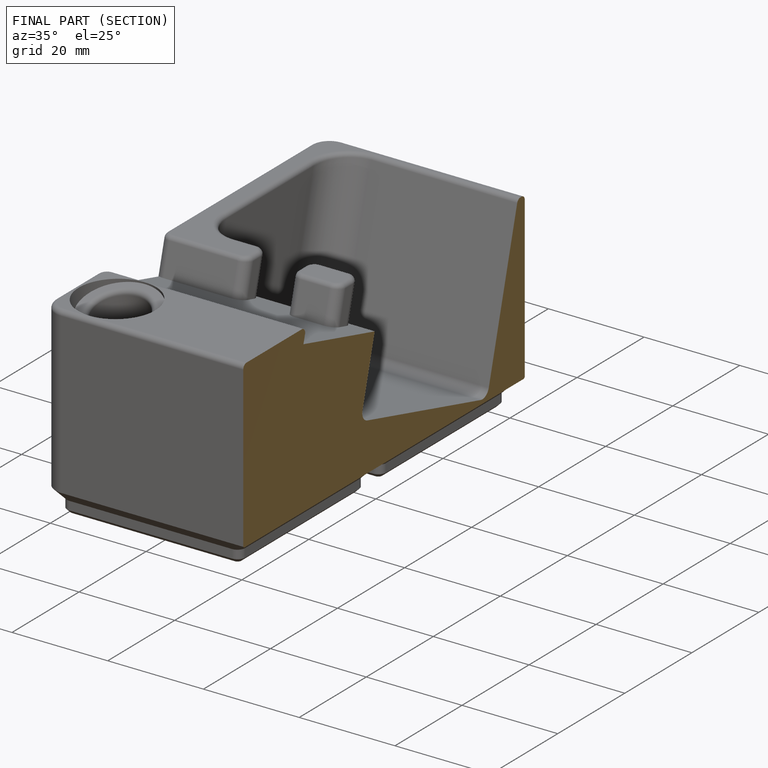
[diagram: finished part — half-section view (interior)]
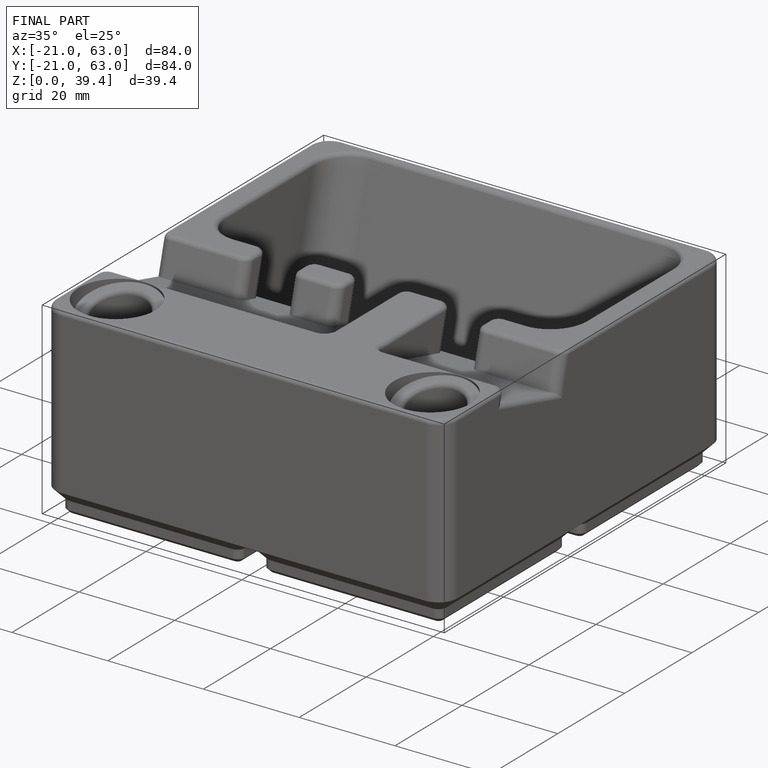
[diagram: finished part — iso view with bounding-box wireframe]
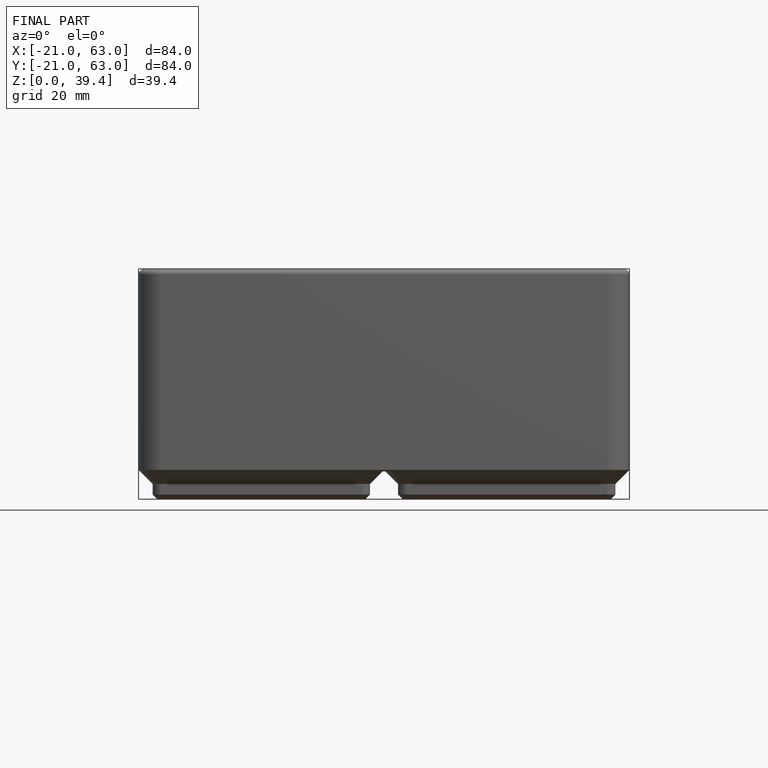
[diagram: finished part — front view with bounding-box wireframe]
